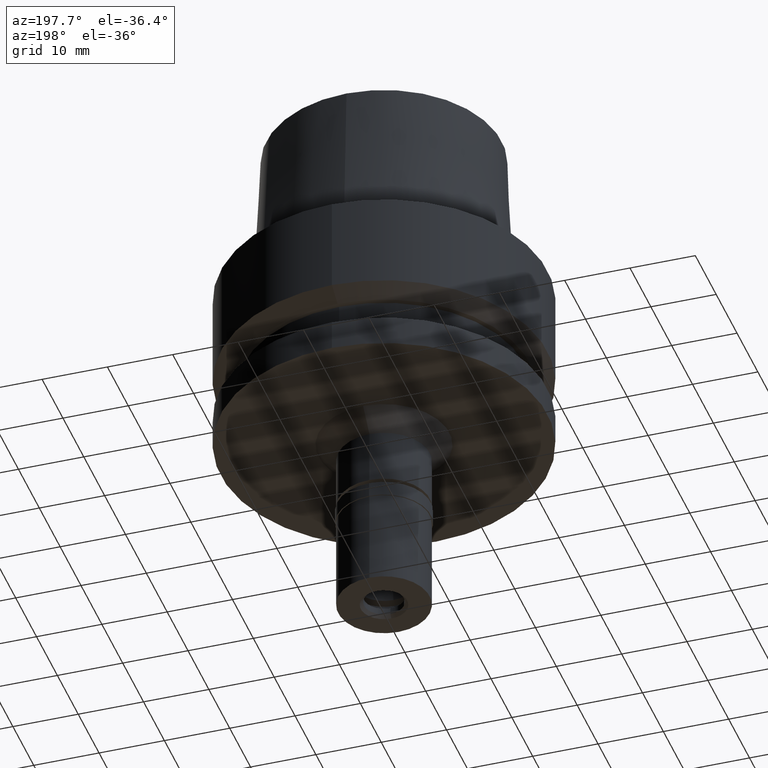
[diagram: clean part render]
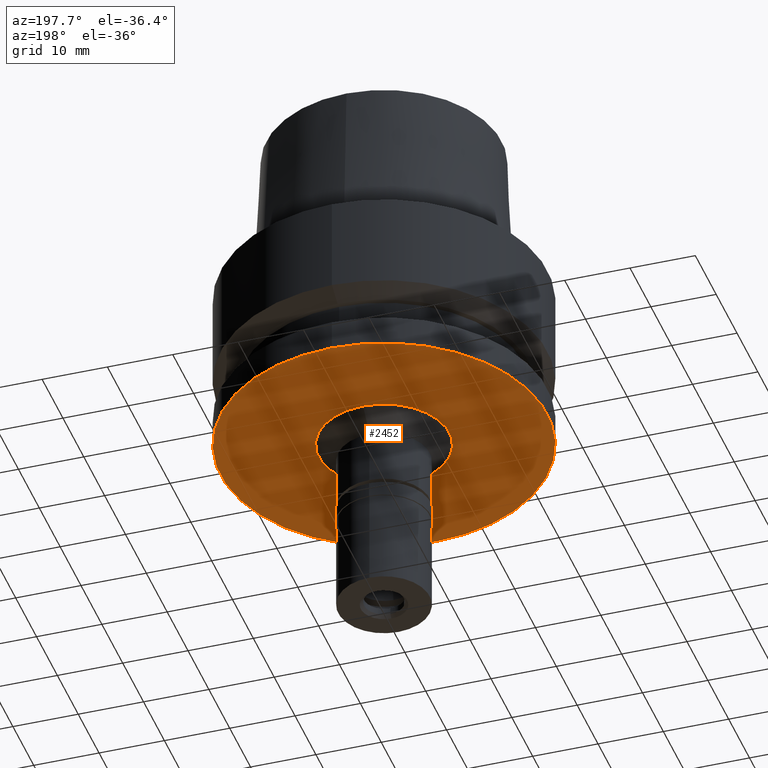
[diagram: same view with one face highlighted and labeled with its STEP entity id]
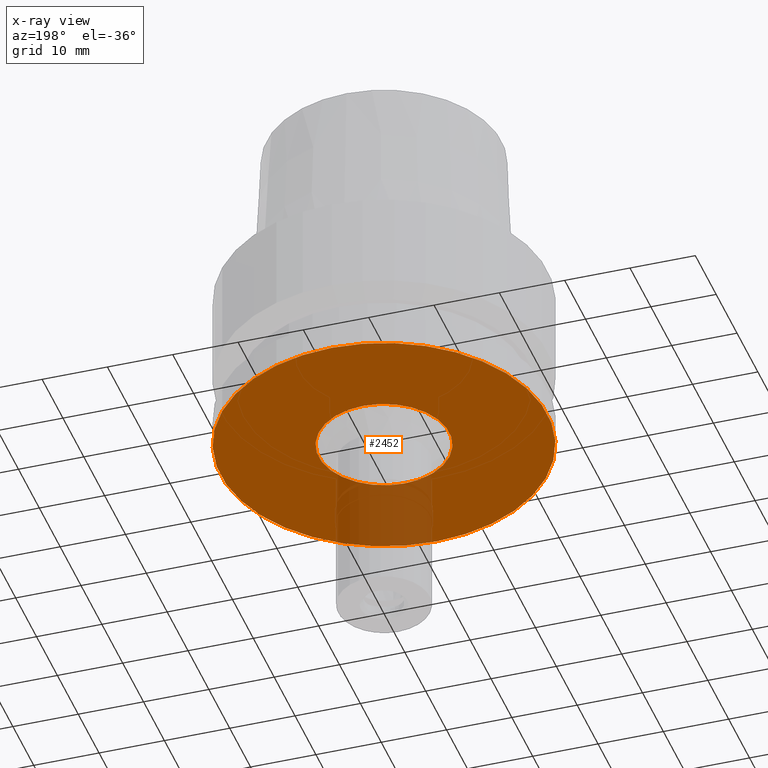
[diagram: x-ray of the same camera — body ghosted, the highlighted face saturated]
A machine part, auxiliary view. The second image highlights one B-rep face of the part: STEP entity #2452.
The next image is the same camera in x-ray: the body ghosted, the highlighted face saturated — about 13% of this face is hidden behind the body in this view.
In plain terms, the highlighted planar face has unit normal (0, 0, 1).
Its self-contained STEP definition (entity closure, byte-faithful):
#54 = CIRCLE ( 'NONE', #1668, 10.00000000000000000 ) ;
#329 = ORIENTED_EDGE ( 'NONE', *, *, #1151, .F. ) ;
#350 = DIRECTION ( 'NONE',  ( 0.0000000000000000000, -1.000000000000000000, 0.0000000000000000000 ) ) ;
#377 = FACE_OUTER_BOUND ( 'NONE', #2153, .T. ) ;
#386 = DIRECTION ( 'NONE',  ( 0.0000000000000000000, 0.0000000000000000000, -1.000000000000000000 ) ) ;
#514 = DIRECTION ( 'NONE',  ( 0.0000000000000000000, 0.0000000000000000000, 1.000000000000000000 ) ) ;
#545 = CIRCLE ( 'NONE', #2243, 25.00000000000000000 ) ;
#570 = CARTESIAN_POINT ( 'NONE',  ( 0.0000000000000000000, 0.0000000000000000000, -26.00000000000000000 ) ) ;
#575 = VERTEX_POINT ( 'NONE', #2354 ) ;
#593 = CARTESIAN_POINT ( 'NONE',  ( 0.0000000000000000000, 0.0000000000000000000, -26.00000000000000000 ) ) ;
#698 = CARTESIAN_POINT ( 'NONE',  ( 0.0000000000000000000, 0.0000000000000000000, -26.00000000000000000 ) ) ;
#798 = ORIENTED_EDGE ( 'NONE', *, *, #2482, .F. ) ;
#821 = ORIENTED_EDGE ( 'NONE', *, *, #2054, .F. ) ;
#859 = VERTEX_POINT ( 'NONE', #2219 ) ;
#923 = DIRECTION ( 'NONE',  ( 0.0000000000000000000, -1.000000000000000000, 0.0000000000000000000 ) ) ;
#968 = VERTEX_POINT ( 'NONE', #1386 ) ;
#1122 = DIRECTION ( 'NONE',  ( 0.0000000000000000000, 1.000000000000000000, 0.0000000000000000000 ) ) ;
#1151 = EDGE_CURVE ( 'NONE', #2527, #859, #1232, .T. ) ;
#1176 = DIRECTION ( 'NONE',  ( 0.0000000000000000000, 0.0000000000000000000, 1.000000000000000000 ) ) ;
#1211 = DIRECTION ( 'NONE',  ( 1.000000000000000000, 0.0000000000000000000, 0.0000000000000000000 ) ) ;
#1223 = FACE_BOUND ( 'NONE', #1619, .T. ) ;
#1232 = CIRCLE ( 'NONE', #1412, 10.00000000000000000 ) ;
#1386 = CARTESIAN_POINT ( 'NONE',  ( 0.0000000000000000000, 25.00000000000000000, -26.00000000000000000 ) ) ;
#1412 = AXIS2_PLACEMENT_3D ( 'NONE', #593, #386, #1650 ) ;
#1588 = PLANE ( 'NONE',  #1769 ) ;
#1619 = EDGE_LOOP ( 'NONE', ( #329, #821 ) ) ;
#1650 = DIRECTION ( 'NONE',  ( 0.0000000000000000000, 1.000000000000000000, 0.0000000000000000000 ) ) ;
#1668 = AXIS2_PLACEMENT_3D ( 'NONE', #698, #2350, #923 ) ;
#1752 = CARTESIAN_POINT ( 'NONE',  ( 0.0000000000000000000, 0.0000000000000000000, -26.00000000000000000 ) ) ;
#1767 = ORIENTED_EDGE ( 'NONE', *, *, #2279, .F. ) ;
#1769 = AXIS2_PLACEMENT_3D ( 'NONE', #2012, #2024, #1211 ) ;
#1832 = CARTESIAN_POINT ( 'NONE',  ( 0.0000000000000000000, 10.00000000000000000, -26.00000000000000000 ) ) ;
#1901 = CIRCLE ( 'NONE', #2289, 25.00000000000000000 ) ;
#2012 = CARTESIAN_POINT ( 'NONE',  ( 0.0000000000000000000, 0.0000000000000000000, -26.00000000000000000 ) ) ;
#2024 = DIRECTION ( 'NONE',  ( 0.0000000000000000000, 0.0000000000000000000, 1.000000000000000000 ) ) ;
#2054 = EDGE_CURVE ( 'NONE', #859, #2527, #54, .T. ) ;
#2153 = EDGE_LOOP ( 'NONE', ( #1767, #798 ) ) ;
#2219 = CARTESIAN_POINT ( 'NONE',  ( 0.0000000000000000000, -10.00000000000000000, -26.00000000000000000 ) ) ;
#2243 = AXIS2_PLACEMENT_3D ( 'NONE', #1752, #514, #1122 ) ;
#2279 = EDGE_CURVE ( 'NONE', #968, #575, #545, .T. ) ;
#2289 = AXIS2_PLACEMENT_3D ( 'NONE', #570, #1176, #350 ) ;
#2350 = DIRECTION ( 'NONE',  ( 0.0000000000000000000, 0.0000000000000000000, -1.000000000000000000 ) ) ;
#2354 = CARTESIAN_POINT ( 'NONE',  ( 0.0000000000000000000, -25.00000000000000000, -26.00000000000000000 ) ) ;
#2452 = ADVANCED_FACE ( 'NONE', ( #377, #1223 ), #1588, .F. ) ;
#2482 = EDGE_CURVE ( 'NONE', #575, #968, #1901, .T. ) ;
#2527 = VERTEX_POINT ( 'NONE', #1832 ) ;